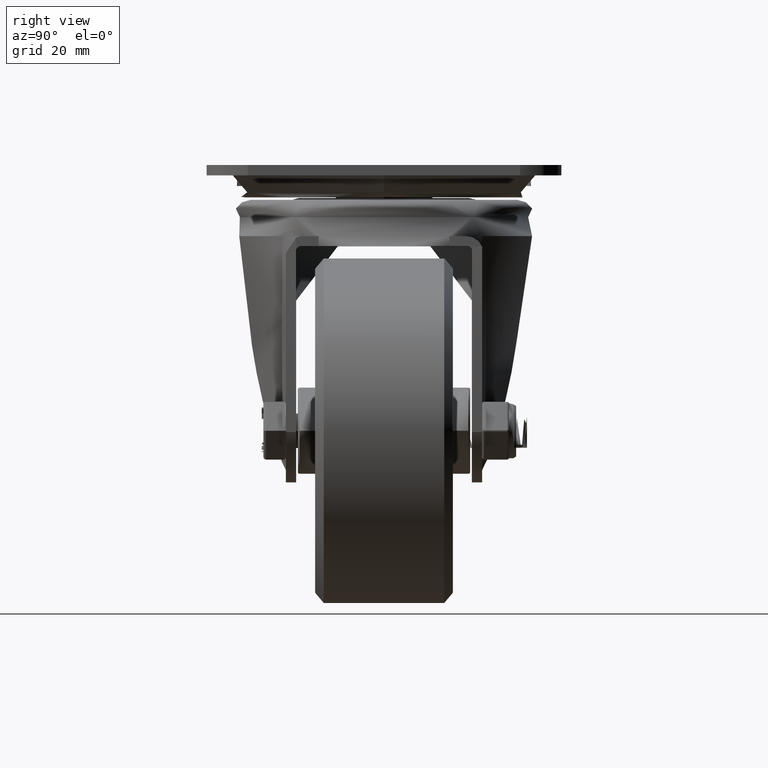
[diagram: clean part render]
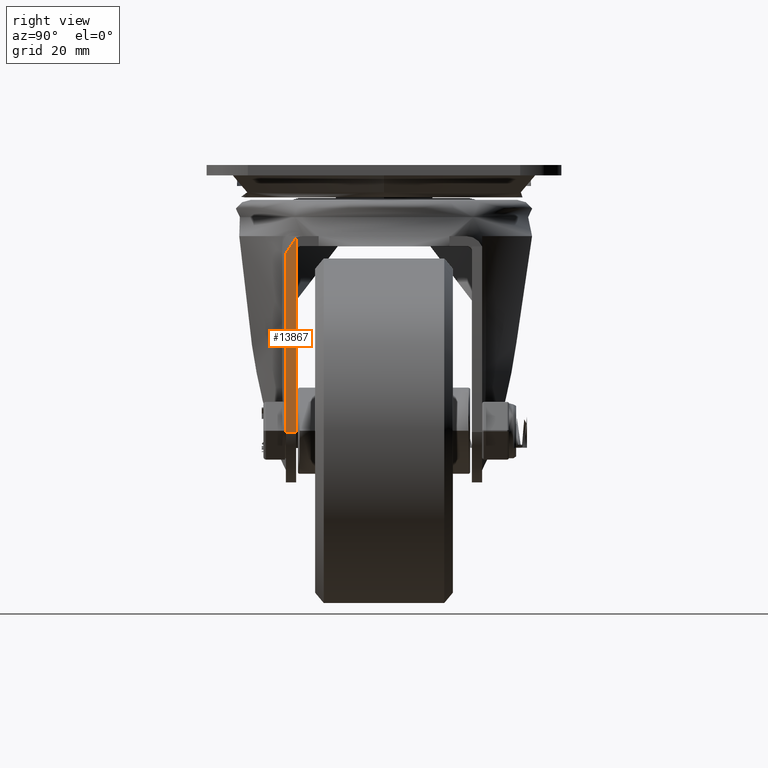
[diagram: same view with one face highlighted and labeled with its STEP entity id]
A machine part, right view. The second image highlights one B-rep face of the part: STEP entity #13867.
In plain terms, the highlighted cylindrical surface (partial cylindrical patch) has radius 728.16 mm, axis along (-0, -1, 0).
Its self-contained STEP definition (entity closure, byte-faithful):
#679=B_SPLINE_CURVE_WITH_KNOTS('',3,(#25139,#25140,#25141,#25142,#25143,
#25144,#25145,#25146),.UNSPECIFIED.,.F.,.F.,(4,2,2,4),(0.197254281661301,
0.376643473833392,0.565546236049381,0.75444899826537),.UNSPECIFIED.);
#1616=CYLINDRICAL_SURFACE('',#14972,728.159973449207);
#2226=FACE_OUTER_BOUND('',#3070,.T.);
#3070=EDGE_LOOP('',(#12056,#12057,#12058,#12059));
#4109=LINE('',#24967,#5131);
#5131=VECTOR('',#17419,1.);
#5711=CIRCLE('',#14964,728.159973449207);
#5712=CIRCLE('',#14969,728.159973449207);
#6803=VERTEX_POINT('',#24947);
#6807=VERTEX_POINT('',#24965);
#6822=VERTEX_POINT('',#25080);
#6825=VERTEX_POINT('',#25131);
#8603=EDGE_CURVE('',#6803,#6807,#4109,.T.);
#8627=EDGE_CURVE('',#6807,#6822,#5711,.T.);
#8633=EDGE_CURVE('',#6803,#6825,#5712,.T.);
#8637=EDGE_CURVE('',#6822,#6825,#679,.T.);
#12056=ORIENTED_EDGE('',*,*,#8627,.T.);
#12057=ORIENTED_EDGE('',*,*,#8637,.T.);
#12058=ORIENTED_EDGE('',*,*,#8633,.F.);
#12059=ORIENTED_EDGE('',*,*,#8603,.T.);
#13867=ADVANCED_FACE('',(#2226),#1616,.T.);
#14964=AXIS2_PLACEMENT_3D('',#25082,#17456,#17457);
#14969=AXIS2_PLACEMENT_3D('',#25132,#17466,#17467);
#14972=AXIS2_PLACEMENT_3D('',#25138,#17474,#17475);
#17419=DIRECTION('',(0.,-1.,0.));
#17456=DIRECTION('center_axis',(0.,1.,0.));
#17457=DIRECTION('ref_axis',(1.,0.,5.71761219258332E-17));
#17466=DIRECTION('center_axis',(0.,1.,0.));
#17467=DIRECTION('ref_axis',(1.,0.,5.71761219258332E-17));
#17474=DIRECTION('center_axis',(0.,1.,0.));
#17475=DIRECTION('ref_axis',(0.,0.,-1.));
#24947=CARTESIAN_POINT('',(-123.091861929985,223.778189306354,-77.5119664587663));
#24965=CARTESIAN_POINT('',(-123.091861929985,220.778189306354,-77.5119664587663));
#24967=CARTESIAN_POINT('',(-123.091861929985,223.778189306354,-77.5119664587663));
#25080=CARTESIAN_POINT('',(-120.832517238557,220.778189306354,-21.0486848872387));
#25082=CARTESIAN_POINT('Origin',(605.067603634352,220.778189306354,-78.3719912315802));
#25131=CARTESIAN_POINT('',(-121.179848866598,223.778189306354,-25.6312605821945));
#25132=CARTESIAN_POINT('Origin',(605.067603634352,223.778189306354,-78.3719912315802));
#25138=CARTESIAN_POINT('Origin',(605.067603634352,223.778189306354,-78.3719912315802));
#25139=CARTESIAN_POINT('Ctrl Pts',(-120.832517238556,220.778189306354,-21.0486848872387));
#25140=CARTESIAN_POINT('Ctrl Pts',(-120.852561882429,221.35978828211,-21.3025154901443));
#25141=CARTESIAN_POINT('Ctrl Pts',(-120.881576113107,221.889293346715,-21.6717754350601));
#25142=CARTESIAN_POINT('Ctrl Pts',(-120.948730502203,222.756556079935,-22.5380578577682));
#25143=CARTESIAN_POINT('Ctrl Pts',(-120.991909082873,223.141839210882,-23.100724754983));
#25144=CARTESIAN_POINT('Ctrl Pts',(-121.084687802254,223.652652242152,-24.3333148371098));
#25145=CARTESIAN_POINT('Ctrl Pts',(-121.134241353303,223.778189306354,-25.0032385594152));
#25146=CARTESIAN_POINT('Ctrl Pts',(-121.179848866597,223.778189306354,-25.6312605821945));